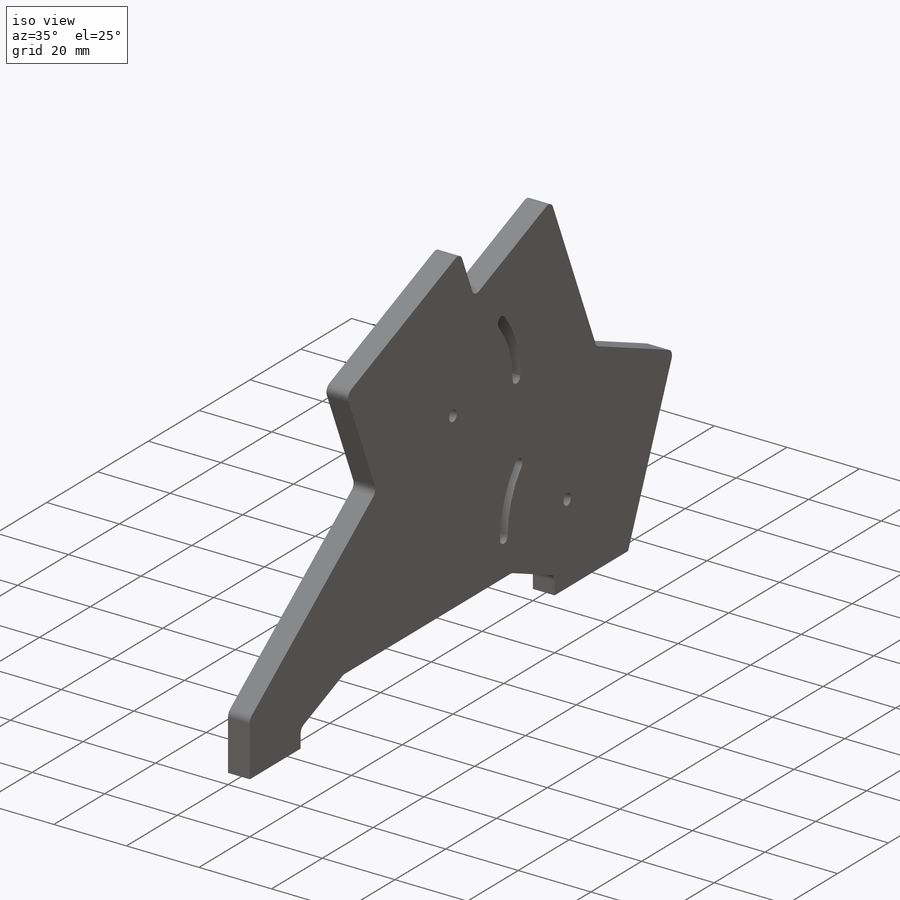
[diagram: iso view]
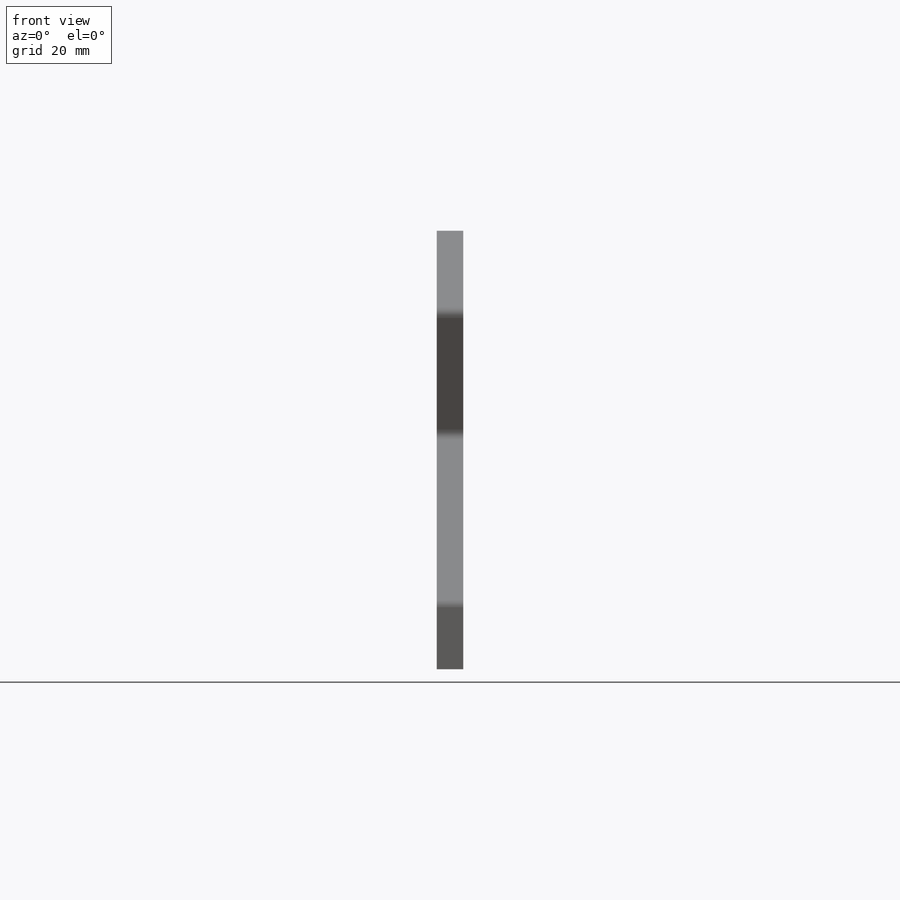
[diagram: front view]
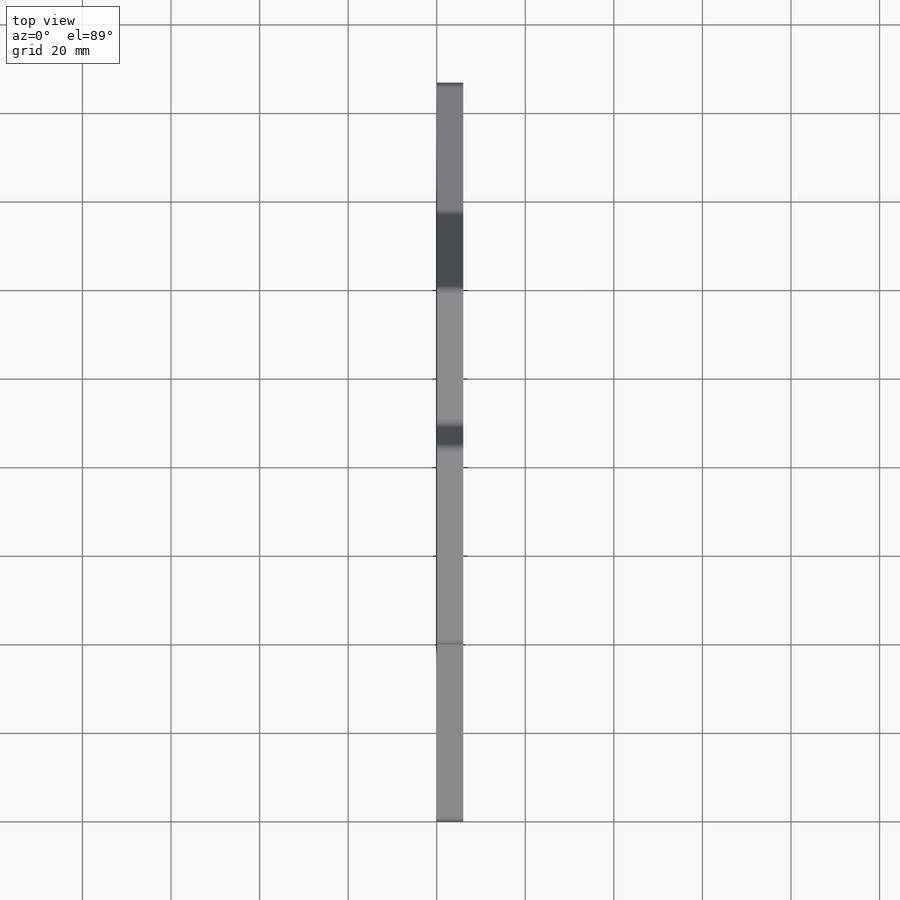
[diagram: top view]
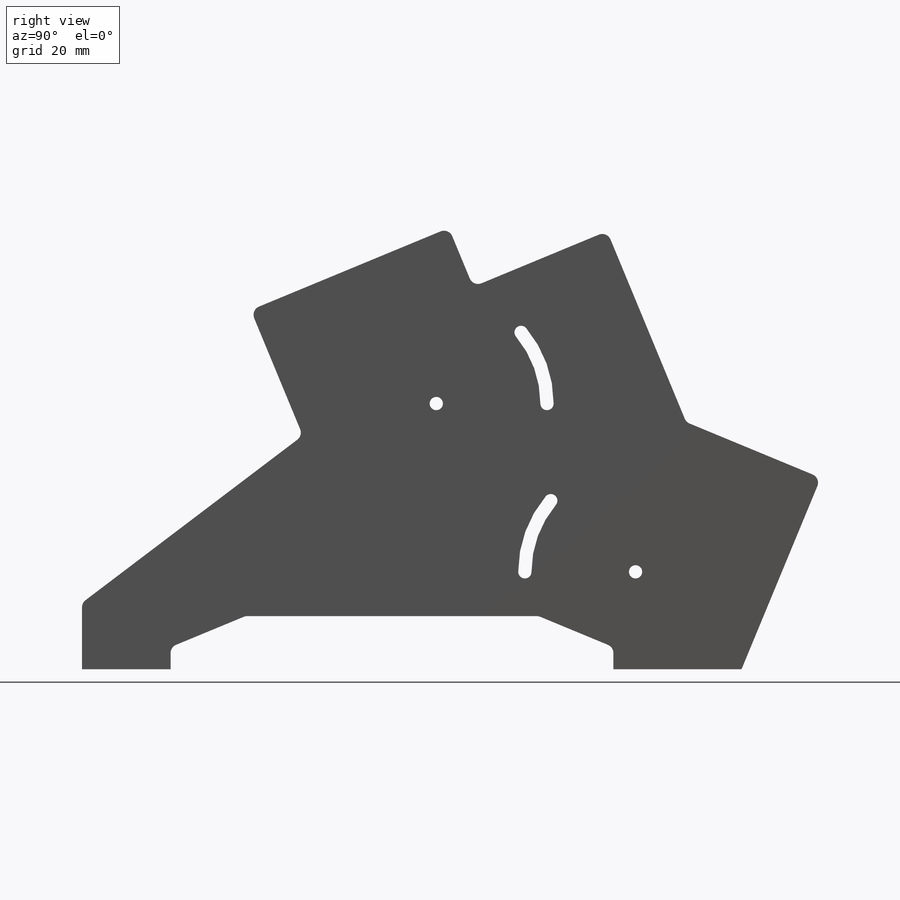
[diagram: right view]
SOLIDWORKS PART (.sldprt)
format: sldprt  version: not decoded by parser v0  size: 337,920 bytes
history: native  units: mm
features: sketch x3, material x1, extrude x1, fillet x1, hole x1 (+11 scaffold rows collapsed)
feature tree (18):
  scaffold x11  (default folders/planes/origin — collapsed)
  material  "1060 Alloy"
  sketch  "Sketch1"  dims[c1.D1=3.0mm c1.D3=1.5mm c1.D8=3.0mm c1.D11=5.0mm c1.D12=3.0mm c1.D14=120.0mm c2.D11=~86.741549mm c2.D16=130.0mm c2.D17=100.0mm c2.D21=~145.369394mm c2.D22=~134.09184mm c2.D23=4.0mm c2.D24=~35.640053mm c2.D18=4.0mm c3.D21=4.0mm c3.D22=4.0mm c3.D23=4.0mm c3.D14=4.0mm c3.D29=4.0mm c3.D2=25.0mm c3.D4=25.0mm c3.D5=22.0mm c4.D5=40.0deg c4.D6=22.0mm c5.D6=40.0deg c5.D7=40.0mm c5.D8=30.0mm c5.D9=10.0mm c5.D10=120.0mm c5.D11=~61.378349mm c6.D11=150.0deg c6.D12=60.0mm c6.D13=85.0mm c6.D14=55.0mm c6.D15=20.0mm c6.D16=~14.664035mm c7.D16=45.0deg c7.D12=20.0mm c7.D14=108.0mm c7.D15=38.0mm c8.D16=50.0mm c8.D8=35.0mm c8.D11=~43.555552mm c8.D17=~82.246767mm c8.D9=~78.34061mm c9.D9=135.0deg c9.D11=~133.060065mm c10.D11=45.0deg c11.D11=~21.438602mm c12.D11=135.0deg c12.D8=35.0mm c12.D9=10.0mm c13.D8=15.0mm c13.D9=10.0mm c13.D12=32.0mm c13.D14=12.0mm c13.D11=10.0mm c14.D14=36.0mm c14.D15=12.0mm c14.D17=12.0mm c14.D18=12.0mm c14.D19=~7.532193mm c15.D19=157.5deg c15.D20=~42.442841mm c16.D20=157.5deg c16.D21=15.0mm c16.D22=15.0mm c16.D15=10.0mm c17.D21=10.0mm c17.D17=10.0mm c17.D18=10.0mm c17.D23=32.0mm c17.D24=15.0mm c17.D25=32.0mm c17.D26=32.0mm c17.D12=12.0mm c17.D15=10.0mm c18.D21=10.0mm c18.D22=15.0mm c18.D24=15.0mm c18.D25=24.0mm c18.D26=24.0mm c19.D25=24.0mm c19.D26=~31.242641mm c19.D22=15.0mm c20.D25=24.0mm c20.D26=~29.866413mm c20.D9=50.0mm c20.D11=10.0mm c21.D11=150.0deg c21.D13=~19.773674mm c21.D9=20.0mm c22.D13=10.0mm c22.D15=55.0mm c22.D16=30.0mm c22.D17=~11.293323mm c23.D17=150.0deg c23.D16=30.0mm c23.D7=120.0mm c23.D12=80.0mm c23.D15=60.0mm c24.D16=40.0mm c24.D18=10.0mm c24.D21=38.0mm c24.D22=38.0mm c24.D23=38.0mm c24.D17=10.0mm c25.D18=~8.660254mm c25.D11=20.0mm c26.D18=30.0mm c26.D19=20.0mm c26.D7=125.0mm c26.D10=80.0mm c27.D18=100.0mm c27.D10=120.0mm c27.D11=~16.365728mm c28.D11=157.5deg c28.D16=~35.010126mm c29.D16=22.5deg c29.D17=~13.397795mm c30.D17=90.0deg c30.D18=35.0mm c30.D20=~42.168768mm c31.D20=90.0deg c31.D11=30.0mm c31.D18=30.0mm c32.D20=65.0mm c32.D21=12.0mm c32.D22=12.0mm c32.D23=12.0mm c32.D24=10.0mm c32.D11=~93.064929mm c33.D11=22.5deg c33.D16=20.0mm c34.D16=22.5deg c34.D17=6.0mm c34.D18=6.0mm c34.D20=30.0mm c34.D21=30.0mm c34.D22=35.0mm c34.D23=80.0mm c34.D11=3.0mm c34.D15=5.5mm c35.D16=2.1mm c35.D19=6.0mm c35.D24=3.0mm c35.D25=10.0mm c35.D26=6.0mm c35.D27=20.0mm c35.D28=20.0mm c35.D29=60.0mm c35.D30=6.0mm c36.D30=22.5deg c36.D31=~73.910363mm c37.D31=22.5deg c37.D14=10.0mm c37.D32=100.0mm c37.D13=2.5mm c37.D30=2.5mm c38.D31=80.0mm c39.D31=22.5deg c39.D33=~73.238115mm c40.D33=22.5deg c40.D29=60.0mm c40.D10=100.0mm c40.D11=22.0mm c40.D13=5.0mm]
  extrude  "Boss-Extrude1"  Depth=6mm
  fillet  "Fillet1"  Radius=2mm
  hole  "Tap Drill for M3 Tap1"  Diameter=2.5mm Depth=10mm
  sketch  "Sketch3"  dims[D1=10.0mm D2=3.0mm D3=10.0mm]
  sketch  "Sketch2"  dims[hole-wizard template sketch: 50 standard entries collapsed; hole parameters above]
decode coverage: 6 of 6 modeling features carry decoded parameters
note: ~ marks probable driven/reference dimensions
note: suppression state not decoded; provenance and decode notes live in map.json
